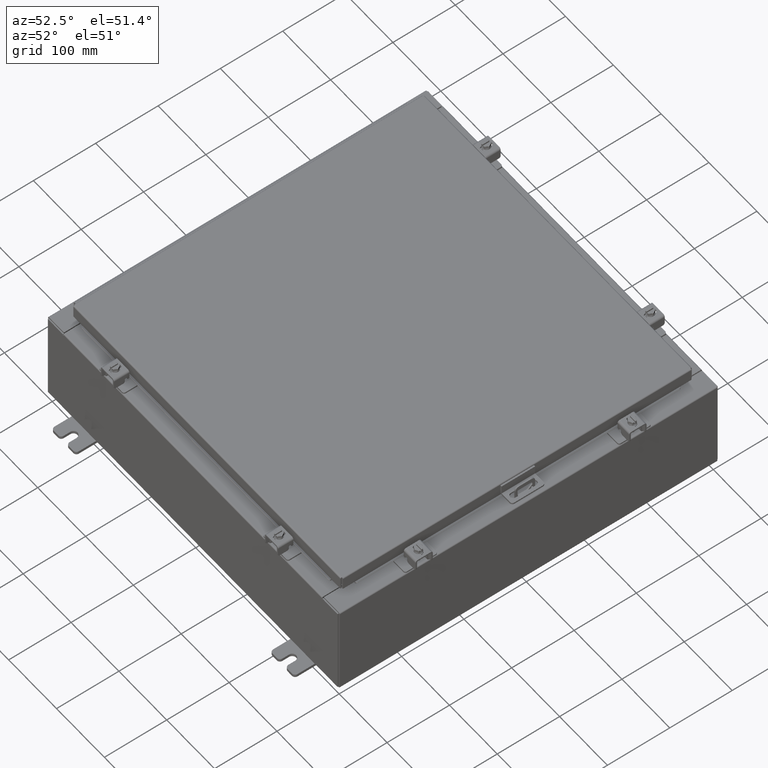
[diagram: clean part render]
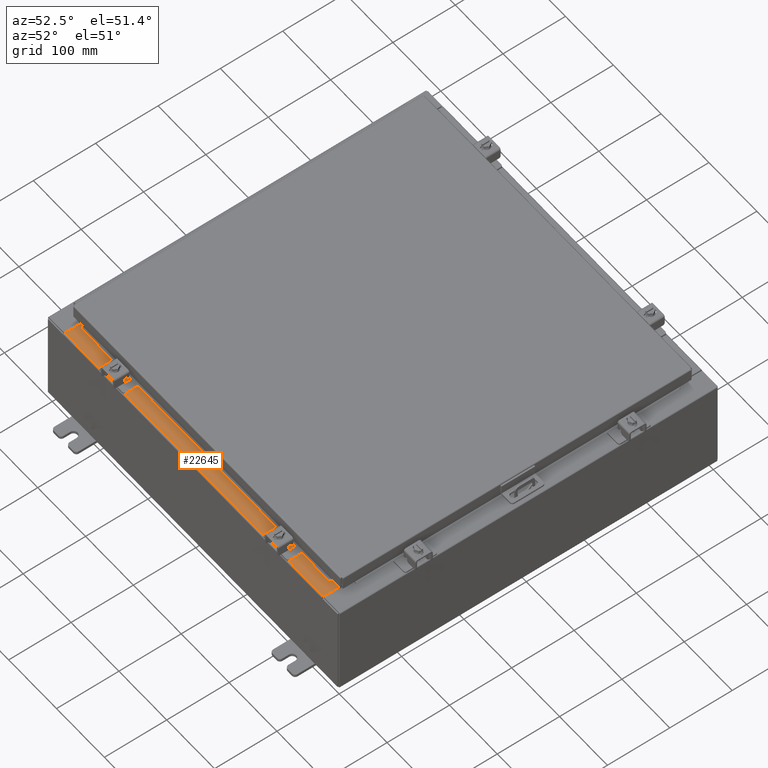
[diagram: same view with one face highlighted and labeled with its STEP entity id]
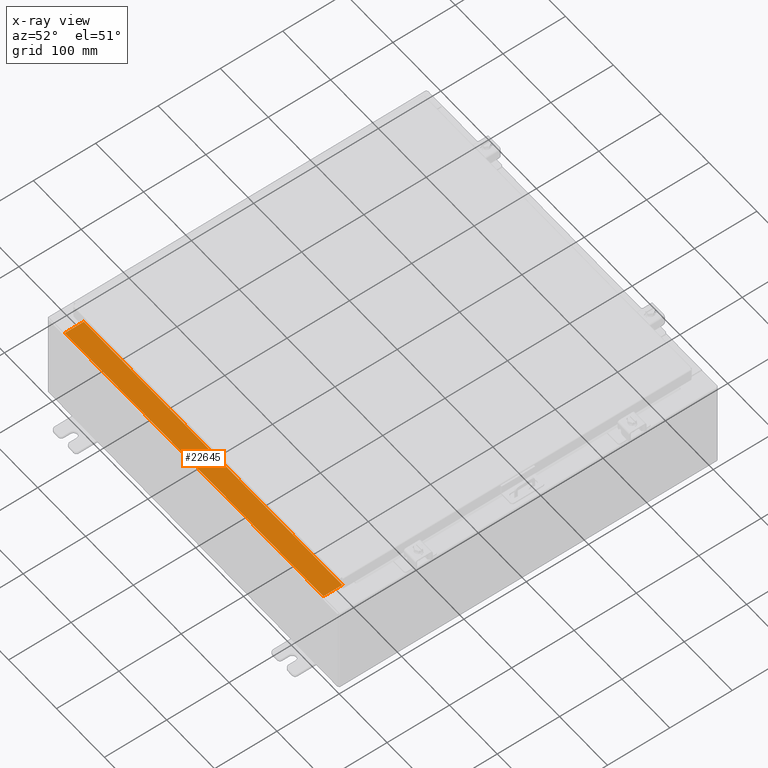
[diagram: x-ray of the same camera — body ghosted, the highlighted face saturated]
A machine part, auxiliary view. The second image highlights one B-rep face of the part: STEP entity #22645.
The next image is the same camera in x-ray: the body ghosted, the highlighted face saturated — about 0% of this face is hidden behind the body in this view.
In plain terms, the highlighted planar face has unit normal (-0, -0, 1).
Its self-contained STEP definition (entity closure, byte-faithful):
#1394 = VERTEX_POINT ( 'NONE', #26087 ) ;
#2210 = LINE ( 'NONE', #3708, #8535 ) ;
#2758 = EDGE_CURVE ( 'NONE', #28789, #18590, #2210, .T. ) ;
#3635 = DIRECTION ( 'NONE',  ( -1.000000000000000000, 2.568202152506545800E-017, -9.159187855938968600E-032 ) ) ;
#3658 = VECTOR ( 'NONE', #13636, 39.37007874015748100 ) ;
#3708 = CARTESIAN_POINT ( 'NONE',  ( -2.252313287748515100E-018, -0.08770000000000000000, 3.000000000000001300 ) ) ;
#5043 = CARTESIAN_POINT ( 'NONE',  ( 0.0000000000000000000, 1.069354855923099900E-014, 3.000000000000000900 ) ) ;
#6271 = DIRECTION ( 'NONE',  ( -1.000000000000000000, 0.0000000000000000000, 0.0000000000000000000 ) ) ;
#6344 = ORIENTED_EDGE ( 'NONE', *, *, #2758, .T. ) ;
#7566 = VECTOR ( 'NONE', #6271, 39.37007874015748100 ) ;
#8535 = VECTOR ( 'NONE', #3635, 39.37007874015748100 ) ;
#9878 = ORIENTED_EDGE ( 'NONE', *, *, #26612, .F. ) ;
#10550 = DIRECTION ( 'NONE',  ( 0.0000000000000000000, 3.566381192773190000E-015, 1.000000000000000000 ) ) ;
#11367 = CARTESIAN_POINT ( 'NONE',  ( -10.63720000000000200, -0.07469999999999973900, 3.000000000000000900 ) ) ;
#12108 = LINE ( 'NONE', #13033, #7566 ) ;
#12737 = ORIENTED_EDGE ( 'NONE', *, *, #30818, .F. ) ;
#13033 = CARTESIAN_POINT ( 'NONE',  ( 10.63720000000000400, -1.287299999999999900, 3.000000000000005300 ) ) ;
#13636 = DIRECTION ( 'NONE',  ( -0.0000000000000000000, 1.000000000000000000, -3.566381192773190000E-015 ) ) ;
#18394 = CARTESIAN_POINT ( 'NONE',  ( -10.63720000000000200, -1.287299999999999200, 3.000000000000005300 ) ) ;
#18459 = CARTESIAN_POINT ( 'NONE',  ( 10.63720000000000200, -1.300299999999999800, 3.000000000000005300 ) ) ;
#18590 = VERTEX_POINT ( 'NONE', #24053 ) ;
#19304 = VECTOR ( 'NONE', #22253, 39.37007874015748100 ) ;
#19511 = PLANE ( 'NONE',  #28257 ) ;
#19928 = ORIENTED_EDGE ( 'NONE', *, *, #32473, .F. ) ;
#20155 = LINE ( 'NONE', #18459, #19304 ) ;
#22253 = DIRECTION ( 'NONE',  ( -0.0000000000000000000, -1.000000000000000000, 3.566381192773190000E-015 ) ) ;
#22645 = ADVANCED_FACE ( 'NONE', ( #32396 ), #19511, .T. ) ;
#23067 = EDGE_LOOP ( 'NONE', ( #19928, #9878, #12737, #6344 ) ) ;
#24053 = CARTESIAN_POINT ( 'NONE',  ( -10.63720000000000200, -0.08770000000000000000, 3.000000000000000900 ) ) ;
#24323 = CARTESIAN_POINT ( 'NONE',  ( 10.63720000000000400, -0.08769999999999965300, 3.000000000000000900 ) ) ;
#26087 = CARTESIAN_POINT ( 'NONE',  ( 10.63720000000000200, -1.287299999999999900, 3.000000000000005300 ) ) ;
#26612 = EDGE_CURVE ( 'NONE', #1394, #26643, #12108, .T. ) ;
#26643 = VERTEX_POINT ( 'NONE', #18394 ) ;
#28257 = AXIS2_PLACEMENT_3D ( 'NONE', #5043, #10550, #30080 ) ;
#28789 = VERTEX_POINT ( 'NONE', #24323 ) ;
#30080 = DIRECTION ( 'NONE',  ( 0.0000000000000000000, -1.000000000000000000, 3.566381192773190000E-015 ) ) ;
#30818 = EDGE_CURVE ( 'NONE', #28789, #1394, #20155, .T. ) ;
#31584 = LINE ( 'NONE', #11367, #3658 ) ;
#32396 = FACE_OUTER_BOUND ( 'NONE', #23067, .T. ) ;
#32473 = EDGE_CURVE ( 'NONE', #26643, #18590, #31584, .T. ) ;